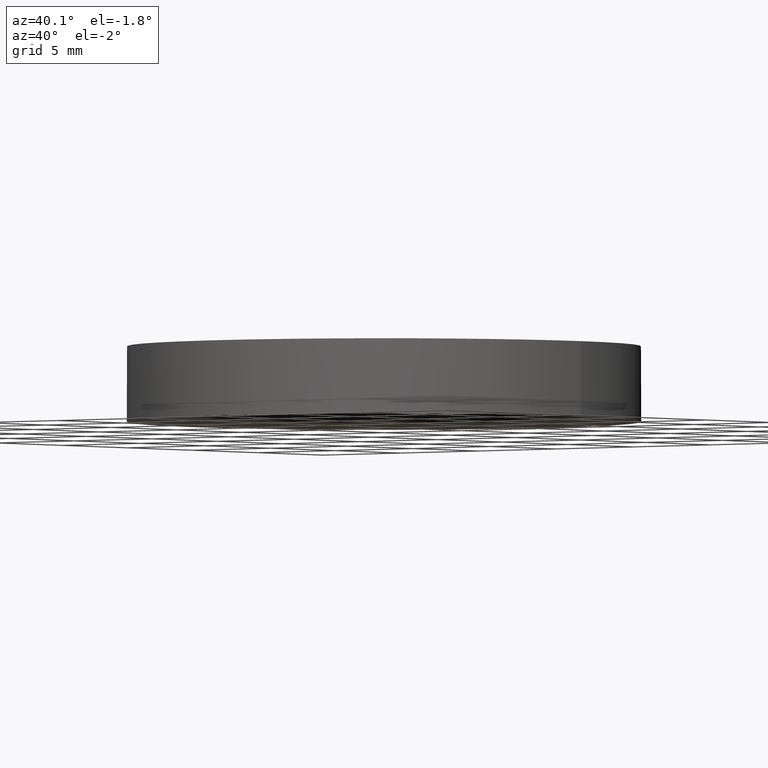
[diagram: clean part render]
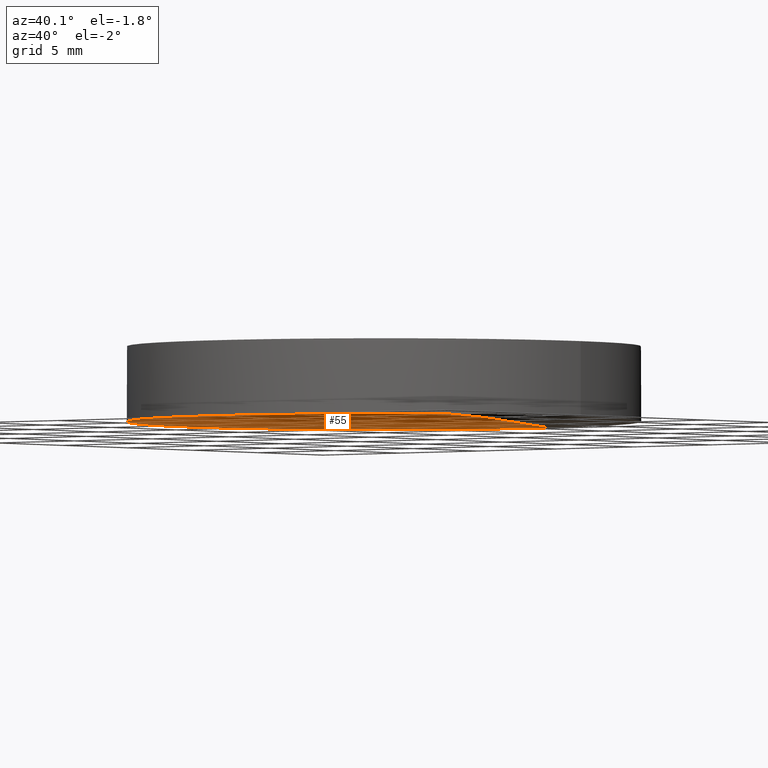
[diagram: same view with one face highlighted and labeled with its STEP entity id]
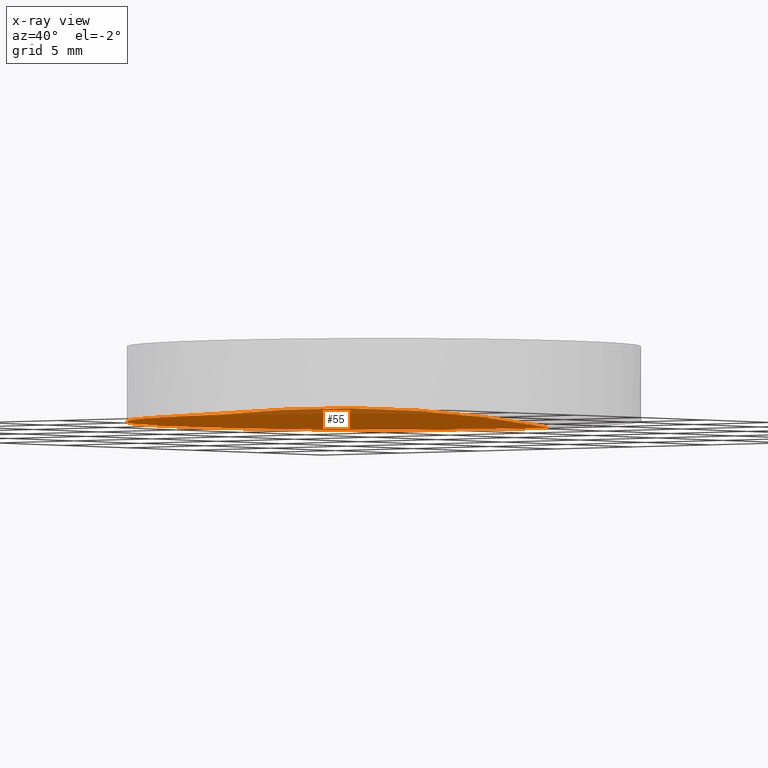
[diagram: x-ray of the same camera — body ghosted, the highlighted face saturated]
A machine part, auxiliary view. The second image highlights one B-rep face of the part: STEP entity #55.
The next image is the same camera in x-ray: the body ghosted, the highlighted face saturated — about 13% of this face is hidden behind the body in this view.
In plain terms, the highlighted face is a freeform B-spline surface patch.
Its self-contained STEP definition (entity closure, byte-faithful):
#1 = EDGE_CURVE ( 'NONE', #167, #208, #222, .T. ) ;
#8 = CARTESIAN_POINT ( 'NONE',  ( 6.558480859566113400E-014, -12.69999999999995100, -0.6232786285613619600 ) ) ;
#12 = CARTESIAN_POINT ( 'NONE',  ( 1.421085471520200100E-014, 1.421085471520200100E-014, -129.6999999999999900 ) ) ;
#14 = ORIENTED_EDGE ( 'NONE', *, *, #74, .F. ) ;
#17 = ORIENTED_EDGE ( 'NONE', *, *, #71, .T. ) ;
#20 = ORIENTED_EDGE ( 'NONE', *, *, #1, .F. ) ;
#23 =( BOUNDED_SURFACE ( )  B_SPLINE_SURFACE ( 3, 3, ( 
 ( #44, #213, #197, #48 ),
 ( #232, #115, #83, #49 ),
 ( #96, #29, #85, #179 ),
 ( #230, #113, #154, #134 ) ),
 .UNSPECIFIED., .F., .F., .T. ) 
 B_SPLINE_SURFACE_WITH_KNOTS ( ( 4, 4 ),
 ( 4, 4 ),
 ( 0.0000000000000000000, 1.000000000000000000 ),
 ( 0.0000000000000000000, 1.000000000000000000 ),
 .UNSPECIFIED. ) 
 GEOMETRIC_REPRESENTATION_ITEM ( )  RATIONAL_B_SPLINE_SURFACE ( (
 ( 1.000000000000000000, 0.9991889511066741600, 0.9991889511066741600, 1.000000000000000000),
 ( 0.9967190197258384300, 0.9959106318679329400, 0.9959106318679329400, 0.9967190197258384300),
 ( 0.9967190197258384300, 0.9959106318679329400, 0.9959106318679329400, 0.9967190197258384300),
 ( 1.000000000000000000, 0.9991889511066741600, 0.9991889511066741600, 1.000000000000000000) ) ) 
 REPRESENTATION_ITEM ( '' )  SURFACE ( )  );
#26 = VERTEX_POINT ( 'NONE', #8 ) ;
#29 = CARTESIAN_POINT ( 'NONE',  ( -8.543445721963362200, -4.298069287684533000, 0.002696849516138697200 ) ) ;
#44 = CARTESIAN_POINT ( 'NONE',  ( -12.71307684645447000, 12.85190222140401100, -1.265984698804928400 ) ) ;
#48 = CARTESIAN_POINT ( 'NONE',  ( 3.816391647148975600E-014, 12.85190222140400700, -0.6383147123381717200 ) ) ;
#49 = CARTESIAN_POINT ( 'NONE',  ( 3.642919299551294900E-014, 4.298069287684551700, 0.2134719680957709900 ) ) ;
#55 = ADVANCED_FACE ( 'NONE', ( #112 ), #23, .F. ) ;
#61 = AXIS2_PLACEMENT_3D ( 'NONE', #77, #212, #93 ) ;
#67 = CARTESIAN_POINT ( 'NONE',  ( 4.996003610813200500E-016, 2.442490654175340100E-015, -0.6232786285613769500 ) ) ;
#71 = EDGE_CURVE ( 'NONE', #167, #26, #117, .T. ) ;
#74 = EDGE_CURVE ( 'NONE', #208, #26, #103, .T. ) ;
#77 = CARTESIAN_POINT ( 'NONE',  ( 4.996003610813200500E-016, 2.442490654175340100E-015, -0.6232786285613769500 ) ) ;
#82 = DIRECTION ( 'NONE',  ( 0.0000000000000000000, 0.0000000000000000000, 1.000000000000000000 ) ) ;
#83 = CARTESIAN_POINT ( 'NONE',  ( -4.274322874609541000, 4.298069287684552500, 0.2134719680957716800 ) ) ;
#85 = CARTESIAN_POINT ( 'NONE',  ( -4.274322874609543600, -4.298069287684533900, 0.2134719680957729600 ) ) ;
#93 = DIRECTION ( 'NONE',  ( 1.000000000000000000, 0.0000000000000000000, 0.0000000000000000000 ) ) ;
#96 = CARTESIAN_POINT ( 'NONE',  ( -12.79698113997898200, -4.298069287684532100, -0.4183405408631472600 ) ) ;
#103 = CIRCLE ( 'NONE', #200, 12.69999999999999900 ) ;
#108 = AXIS2_PLACEMENT_3D ( 'NONE', #12, #135, #132 ) ;
#112 = FACE_OUTER_BOUND ( 'NONE', #125, .T. ) ;
#113 = CARTESIAN_POINT ( 'NONE',  ( -8.487430028127041800, -12.85190222140398900, -0.8477078692486018600 ) ) ;
#115 = CARTESIAN_POINT ( 'NONE',  ( -8.543445721963358600, 4.298069287684553400, 0.002696849516137775600 ) ) ;
#117 = CIRCLE ( 'NONE', #108, 129.6999999999999900 ) ;
#120 = CARTESIAN_POINT ( 'NONE',  ( -12.69999999999999900, 3.997792089092478900E-015, -0.6232786285613769500 ) ) ;
#125 = EDGE_LOOP ( 'NONE', ( #20, #17, #14 ) ) ;
#132 = DIRECTION ( 'NONE',  ( 2.240445334451199600E-016, 1.000000000000000000, 0.0000000000000000000 ) ) ;
#134 = CARTESIAN_POINT ( 'NONE',  ( 3.122502256758252800E-014, -12.85190222140399100, -0.6383147123381715000 ) ) ;
#135 = DIRECTION ( 'NONE',  ( 1.000000000000000000, -2.240445334451200100E-016, -4.200549787686929800E-016 ) ) ;
#149 = CARTESIAN_POINT ( 'NONE',  ( 7.127553974516716400E-014, 12.69999999999996900, -0.6232786285613619600 ) ) ;
#154 = CARTESIAN_POINT ( 'NONE',  ( -4.246297980521881700, -12.85190222140398900, -0.6383147123381708300 ) ) ;
#156 = DIRECTION ( 'NONE',  ( 1.000000000000000000, 0.0000000000000000000, 0.0000000000000000000 ) ) ;
#167 = VERTEX_POINT ( 'NONE', #149 ) ;
#179 = CARTESIAN_POINT ( 'NONE',  ( 3.295974604355934100E-014, -4.298069287684534800, 0.2134719680957722600 ) ) ;
#197 = CARTESIAN_POINT ( 'NONE',  ( -4.246297980521874600, 12.85190222140400900, -0.6383147123381710500 ) ) ;
#200 = AXIS2_PLACEMENT_3D ( 'NONE', #67, #82, #156 ) ;
#208 = VERTEX_POINT ( 'NONE', #120 ) ;
#212 = DIRECTION ( 'NONE',  ( 0.0000000000000000000, 0.0000000000000000000, 1.000000000000000000 ) ) ;
#213 = CARTESIAN_POINT ( 'NONE',  ( -8.487430028127034700, 12.85190222140400900, -0.8477078692486018600 ) ) ;
#222 = CIRCLE ( 'NONE', #61, 12.69999999999999900 ) ;
#230 = CARTESIAN_POINT ( 'NONE',  ( -12.71307684645447700, -12.85190222140398800, -1.265984698804928400 ) ) ;
#232 = CARTESIAN_POINT ( 'NONE',  ( -12.79698113997897800, 4.298069287684554300, -0.4183405408631480900 ) ) ;